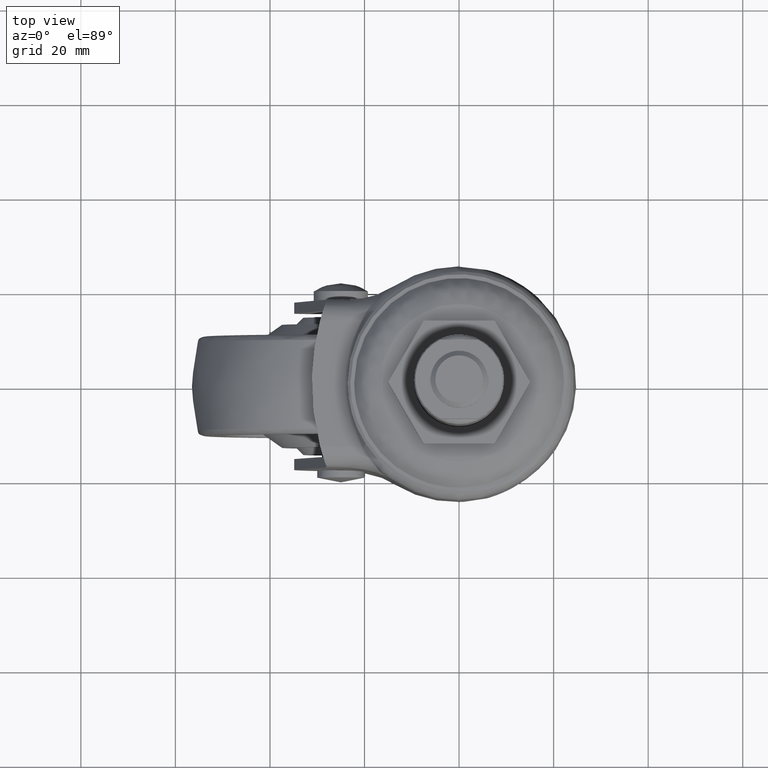
[diagram: clean part render]
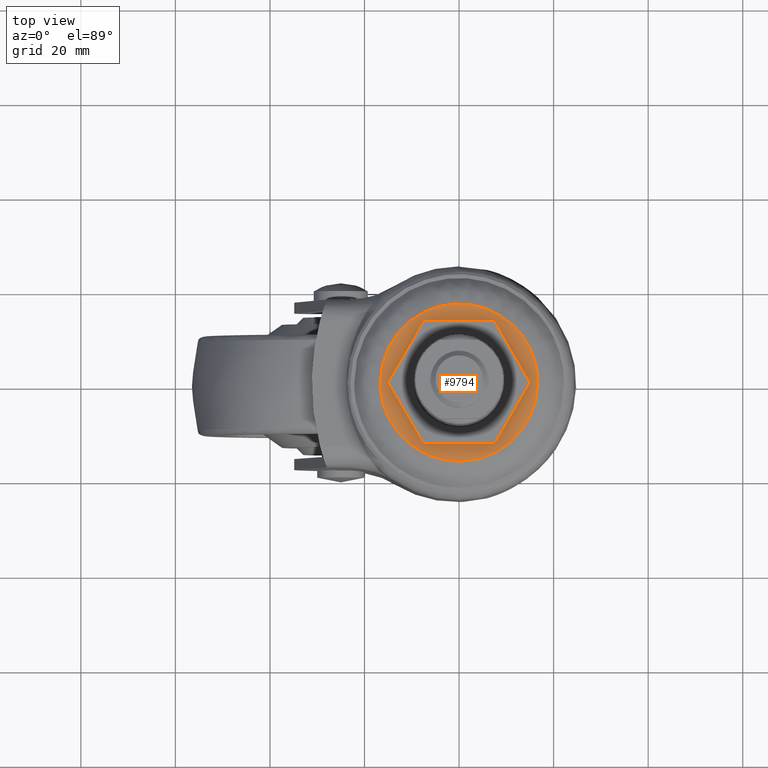
[diagram: same view with one face highlighted and labeled with its STEP entity id]
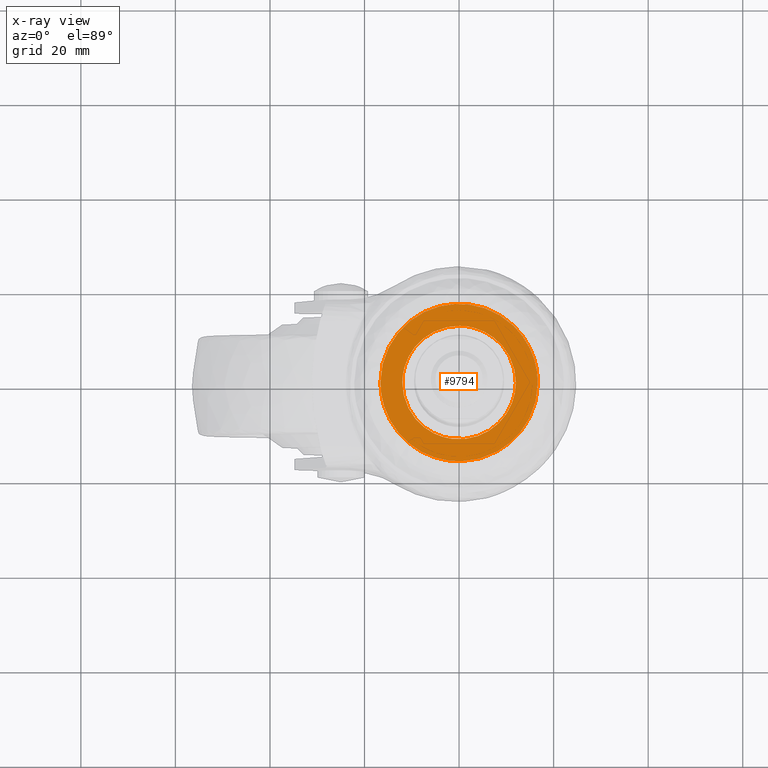
[diagram: x-ray of the same camera — body ghosted, the highlighted face saturated]
A machine part, top view. The second image highlights one B-rep face of the part: STEP entity #9794.
The next image is the same camera in x-ray: the body ghosted, the highlighted face saturated — about 0% of this face is hidden behind the body in this view.
In plain terms, the highlighted face is a freeform B-spline surface patch.
Its self-contained STEP definition (entity closure, byte-faithful):
#5759=CARTESIAN_POINT('',(0.104718426055277,11.999543076769401,-1.999818000000155));
#5760=VERTEX_POINT('',#5759);
#5766=CARTESIAN_POINT('',(-12.0,0.0,-1.999818000000155));
#5767=VERTEX_POINT('',#5766);
#5768=CARTESIAN_POINT('',(0.104718426055277,11.999543076769401,-1.999818000000155));
#5769=CARTESIAN_POINT('',(0.052360209923214,12.000000000000004,-1.999818000000155));
#5770=CARTESIAN_POINT('',(0.0,12.0,-1.999818000000155));
#5771=CARTESIAN_POINT('',(-12.0,12.0,-1.999818000000155));
#5772=CARTESIAN_POINT('',(-12.0,0.0,-1.999818000000155));
#5780=(BOUNDED_CURVE()B_SPLINE_CURVE(2,(#5768,#5769,#5770,#5771,#5772),.UNSPECIFIED.,.F.,.U.)B_SPLINE_CURVE_WITH_KNOTS((3,2,3),(0.248460105662817,0.250000000000000,0.500000000000000),.UNSPECIFIED.)CURVE()GEOMETRIC_REPRESENTATION_ITEM()RATIONAL_B_SPLINE_CURVE((0.996414028095324,0.998195901563800,1.0,0.707106781186548,1.0))REPRESENTATION_ITEM(''));
#5781=EDGE_CURVE('',#5760,#5767,#5780,.T.);
#5783=CARTESIAN_POINT('',(-1.489515577494815,-11.907197123755680,-1.999818000000155));
#5784=VERTEX_POINT('',#5783);
#5785=CARTESIAN_POINT('',(-12.0,0.0,-1.999818000000155));
#5786=CARTESIAN_POINT('',(-12.000000000000002,-10.592401533205505,-1.999818000000155));
#5787=CARTESIAN_POINT('',(-1.489515577494815,-11.907197123755678,-1.999818000000155));
#5795=(BOUNDED_CURVE()B_SPLINE_CURVE(2,(#5785,#5786,#5787),.UNSPECIFIED.,.F.,.U.)B_SPLINE_CURVE_WITH_KNOTS((3,3),(0.500000000000000,0.728526360634179),.UNSPECIFIED.)CURVE()GEOMETRIC_REPRESENTATION_ITEM()RATIONAL_B_SPLINE_CURVE((1.0,0.732264714600526,0.954005992286612))REPRESENTATION_ITEM(''));
#5796=EDGE_CURVE('',#5767,#5784,#5795,.T.);
#5846=CARTESIAN_POINT('',(12.0,0.0,-1.999818000000155));
#5847=VERTEX_POINT('',#5846);
#5848=CARTESIAN_POINT('',(-1.489515577494815,-11.907197123755678,-1.999818000000155));
#5849=CARTESIAN_POINT('',(-0.747648786991852,-12.0,-1.999818000000155));
#5850=CARTESIAN_POINT('',(0.0,-12.0,-1.999818000000155));
#5851=CARTESIAN_POINT('',(12.0,-12.0,-1.999818000000155));
#5852=CARTESIAN_POINT('',(12.0,0.0,-1.999818000000155));
#5860=(BOUNDED_CURVE()B_SPLINE_CURVE(2,(#5848,#5849,#5850,#5851,#5852),.UNSPECIFIED.,.F.,.U.)B_SPLINE_CURVE_WITH_KNOTS((3,2,3),(0.728526360634179,0.750000000000000,1.0),.UNSPECIFIED.)CURVE()GEOMETRIC_REPRESENTATION_ITEM()RATIONAL_B_SPLINE_CURVE((0.954005992286612,0.974842066586022,1.0,0.707106781186548,1.0))REPRESENTATION_ITEM(''));
#5861=EDGE_CURVE('',#5784,#5847,#5860,.T.);
#5863=CARTESIAN_POINT('',(12.0,0.0,-1.999818000000155));
#5864=CARTESIAN_POINT('',(12.000000000000002,11.895734526991447,-1.999818000000154));
#5865=CARTESIAN_POINT('',(0.104718426055277,11.999543076769401,-1.999818000000155));
#5873=(BOUNDED_CURVE()B_SPLINE_CURVE(2,(#5863,#5864,#5865),.UNSPECIFIED.,.F.,.U.)B_SPLINE_CURVE_WITH_KNOTS((3,3),(0.0,0.248460105662817),.UNSPECIFIED.)CURVE()GEOMETRIC_REPRESENTATION_ITEM()RATIONAL_B_SPLINE_CURVE((1.0,0.708910879622748,0.996414028095324))REPRESENTATION_ITEM(''));
#5874=EDGE_CURVE('',#5847,#5760,#5873,.T.);
#8052=CARTESIAN_POINT('',(8.120989753852591,-14.531594552437451,-1.999818000000001));
#8053=VERTEX_POINT('',#8052);
#8067=CARTESIAN_POINT('',(-16.646853000000000,0.0,-1.999818000000000));
#8068=VERTEX_POINT('',#8067);
#8069=CARTESIAN_POINT('',(8.120989753852591,-14.531594552437451,-1.999818000000001));
#8070=CARTESIAN_POINT('',(4.335973509196198,-16.646853000000000,-1.999818000000000));
#8071=CARTESIAN_POINT('',(0.0,-16.646853000000000,-1.999818000000000));
#8072=CARTESIAN_POINT('',(-16.646852999999997,-16.646852999999997,-1.999818000000000));
#8073=CARTESIAN_POINT('',(-16.646853000000000,0.0,-1.999818000000000));
#8081=(BOUNDED_CURVE()B_SPLINE_CURVE(2,(#8069,#8070,#8071,#8072,#8073),.UNSPECIFIED.,.F.,.U.)B_SPLINE_CURVE_WITH_KNOTS((3,2,3),(0.666878557043280,0.750000000000000,1.0),.UNSPECIFIED.)CURVE()GEOMETRIC_REPRESENTATION_ITEM()RATIONAL_B_SPLINE_CURVE((0.869991153567264,0.902617172079950,1.0,0.707106781186548,1.0))REPRESENTATION_ITEM(''));
#8082=EDGE_CURVE('',#8053,#8068,#8081,.T.);
#8084=CARTESIAN_POINT('',(14.972267011835310,7.276601912394842,-1.999818000000001));
#8085=VERTEX_POINT('',#8084);
#8086=CARTESIAN_POINT('',(-16.646853000000000,0.0,-1.999818000000000));
#8087=CARTESIAN_POINT('',(-16.646852999999997,16.646852999999997,-1.999818000000000));
#8088=CARTESIAN_POINT('',(0.0,16.646853000000000,-1.999818000000000));
#8089=CARTESIAN_POINT('',(10.418274823311547,16.646853000000000,-1.999818000000000));
#8090=CARTESIAN_POINT('',(14.972267011835317,7.276601912394843,-1.999818000000001));
#8098=(BOUNDED_CURVE()B_SPLINE_CURVE(2,(#8086,#8087,#8088,#8089,#8090),.UNSPECIFIED.,.F.,.U.)B_SPLINE_CURVE_WITH_KNOTS((3,2,3),(0.0,0.250000000000000,0.425716704549786),.UNSPECIFIED.)CURVE()GEOMETRIC_REPRESENTATION_ITEM()RATIONAL_B_SPLINE_CURVE((1.0,0.707106781186548,1.0,0.794135075220483,0.877661399758136))REPRESENTATION_ITEM(''));
#8099=EDGE_CURVE('',#8068,#8085,#8098,.T.);
#8180=CARTESIAN_POINT('',(16.646853000000000,0.0,-1.999818000000000));
#8181=VERTEX_POINT('',#8180);
#8182=CARTESIAN_POINT('',(14.972267011835317,7.276601912394843,-1.999818000000001));
#8183=CARTESIAN_POINT('',(16.646853000000007,3.830989677315851,-1.999818000000000));
#8184=CARTESIAN_POINT('',(16.646853000000000,0.0,-1.999818000000000));
#8192=(BOUNDED_CURVE()B_SPLINE_CURVE(2,(#8182,#8183,#8184),.UNSPECIFIED.,.F.,.U.)B_SPLINE_CURVE_WITH_KNOTS((3,3),(0.425716704549786,0.500000000000000),.UNSPECIFIED.)CURVE()GEOMETRIC_REPRESENTATION_ITEM()RATIONAL_B_SPLINE_CURVE((0.877661399758136,0.912971705966064,1.0))REPRESENTATION_ITEM(''));
#8193=EDGE_CURVE('',#8085,#8181,#8192,.T.);
#8195=CARTESIAN_POINT('',(16.646853000000000,0.0,-1.999818000000000));
#8196=CARTESIAN_POINT('',(16.646853000000004,-9.766911102005576,-1.999818000000000));
#8197=CARTESIAN_POINT('',(8.120989753852591,-14.531594552437445,-1.999818000000001));
#8205=(BOUNDED_CURVE()B_SPLINE_CURVE(2,(#8195,#8196,#8197),.UNSPECIFIED.,.F.,.U.)B_SPLINE_CURVE_WITH_KNOTS((3,3),(0.500000000000000,0.666878557043280),.UNSPECIFIED.)CURVE()GEOMETRIC_REPRESENTATION_ITEM()RATIONAL_B_SPLINE_CURVE((1.0,0.804489609106598,0.869991153567264))REPRESENTATION_ITEM(''));
#8206=EDGE_CURVE('',#8181,#8053,#8205,.T.);
#9777=CARTESIAN_POINT('',(-18.309873118684340,-18.304005466909938,-1.999818000000105));
#9778=CARTESIAN_POINT('',(18.309871928008629,-18.304005466909938,-1.999818000000105));
#9779=CARTESIAN_POINT('',(-18.309873118684340,18.293680293660419,-1.999818000000105));
#9780=CARTESIAN_POINT('',(18.309871928008629,18.293680293660419,-1.999818000000105));
#9781=B_SPLINE_SURFACE_WITH_KNOTS('',1,1,((#9777,#9779),(#9778,#9780)),.UNSPECIFIED.,.F.,.F.,.U.,(2,2),(2,2),(0.0,36.619745046692969),(0.0,36.597685760570357),.UNSPECIFIED.);
#9782=ORIENTED_EDGE('',*,*,#8082,.F.);
#9783=ORIENTED_EDGE('',*,*,#8206,.F.);
#9784=ORIENTED_EDGE('',*,*,#8193,.F.);
#9785=ORIENTED_EDGE('',*,*,#8099,.F.);
#9786=EDGE_LOOP('',(#9782,#9783,#9784,#9785));
#9787=FACE_OUTER_BOUND('',#9786,.T.);
#9788=ORIENTED_EDGE('',*,*,#5874,.F.);
#9789=ORIENTED_EDGE('',*,*,#5861,.F.);
#9790=ORIENTED_EDGE('',*,*,#5796,.F.);
#9791=ORIENTED_EDGE('',*,*,#5781,.F.);
#9792=EDGE_LOOP('',(#9788,#9789,#9790,#9791));
#9793=FACE_BOUND('',#9792,.T.);
#9794=ADVANCED_FACE('',(#9787,#9793),#9781,.T.);